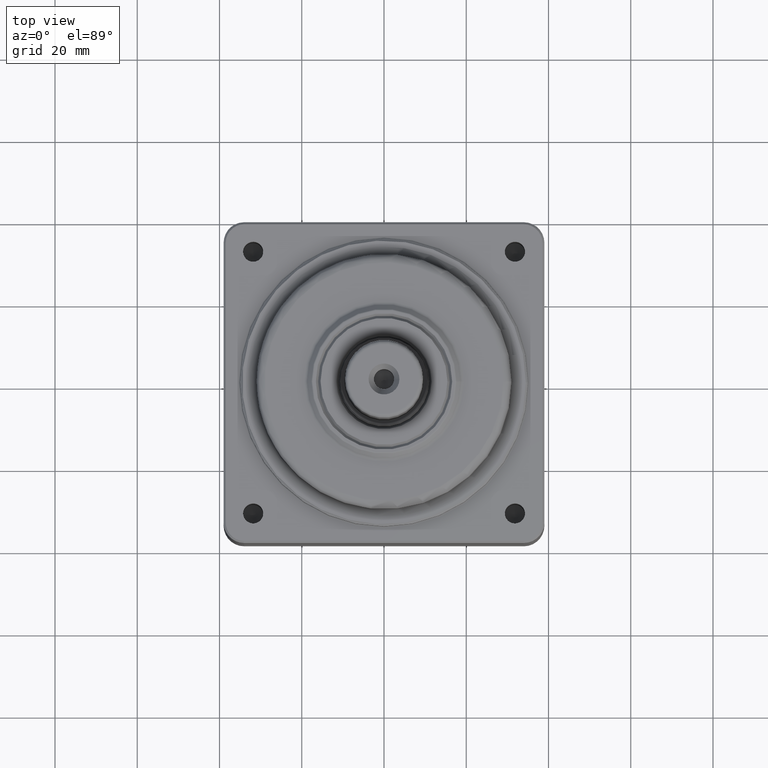
[diagram: clean part render]
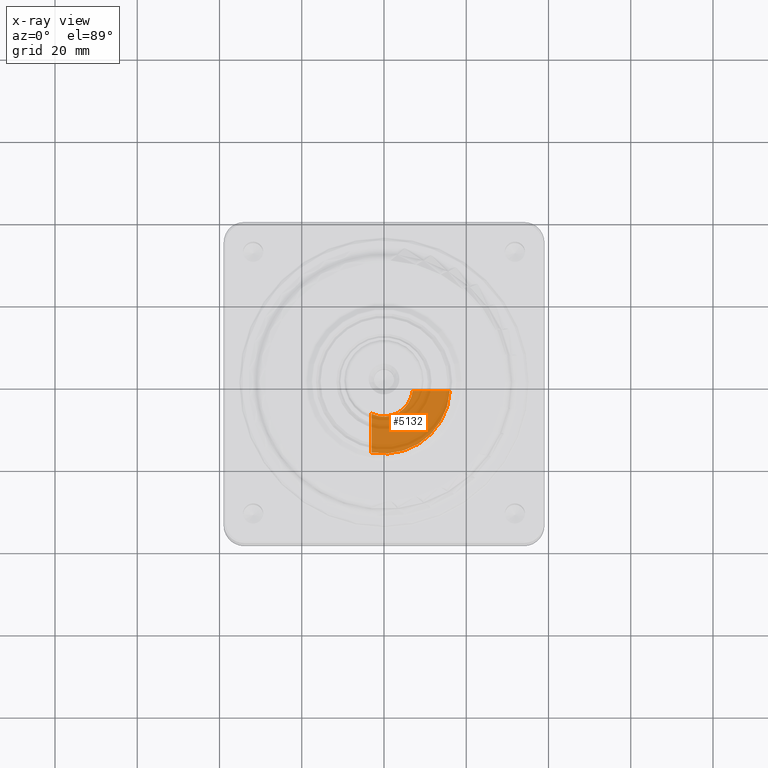
[diagram: x-ray — body ghosted, one internal face saturated and labeled with its STEP entity id]
A machine part, top view, then the same camera in x-ray: the body is ghosted and one INTERNAL B-rep face — a face not visible from any outside direction — is saturated and labeled: STEP entity #5132.
In plain terms, the highlighted planar face has unit normal (0, 0, -1).
Its self-contained STEP definition (entity closure, byte-faithful):
#73=CARTESIAN_POINT('',(-3.0,-6.324555320336759,-39.0));
#74=VERTEX_POINT('',#73);
#75=CARTESIAN_POINT('',(6.959705453537528,-0.75,-39.0));
#76=VERTEX_POINT('',#75);
#77=CARTESIAN_POINT('',(0.0,3.284779E-031,-39.0));
#78=DIRECTION('',(0.0,0.0,1.0));
#79=DIRECTION('',(1.0,0.0,0.0));
#80=AXIS2_PLACEMENT_3D('',#77,#78,#79);
#81=CIRCLE('',#80,7.000000000000001);
#82=EDGE_CURVE('',#74,#76,#81,.T.);
#4816=CARTESIAN_POINT('',(15.982412208424609,-0.75,-39.0));
#4817=VERTEX_POINT('',#4816);
#4824=CARTESIAN_POINT('',(-3.0,-15.716233645501713,-39.0));
#4825=VERTEX_POINT('',#4824);
#4826=CARTESIAN_POINT('',(0.0,3.284779E-031,-39.0));
#4827=DIRECTION('',(0.0,0.0,-1.0));
#4828=DIRECTION('',(-1.0,0.0,0.0));
#4829=AXIS2_PLACEMENT_3D('',#4826,#4827,#4828);
#4830=CIRCLE('',#4829,16.0);
#4831=EDGE_CURVE('',#4817,#4825,#4830,.T.);
#5041=CARTESIAN_POINT('',(-3.0,-15.716233645501713,-39.0));
#5042=DIRECTION('',(0.0,1.0,0.0));
#5043=VECTOR('',#5042,9.391678325164955);
#5044=LINE('',#5041,#5043);
#5045=EDGE_CURVE('',#4825,#74,#5044,.T.);
#5116=CARTESIAN_POINT('',(16.0,-16.0,-39.0));
#5117=DIRECTION('',(0.0,0.0,-1.0));
#5118=DIRECTION('',(-1.0,0.0,0.0));
#5119=AXIS2_PLACEMENT_3D('',#5116,#5117,#5118);
#5120=PLANE('',#5119);
#5121=ORIENTED_EDGE('',*,*,#4831,.F.);
#5122=CARTESIAN_POINT('',(15.982412208424609,-0.75,-39.0));
#5123=DIRECTION('',(-1.0,0.0,0.0));
#5124=VECTOR('',#5123,9.022706754887082);
#5125=LINE('',#5122,#5124);
#5126=EDGE_CURVE('',#4817,#76,#5125,.T.);
#5127=ORIENTED_EDGE('',*,*,#5126,.T.);
#5128=ORIENTED_EDGE('',*,*,#82,.F.);
#5129=ORIENTED_EDGE('',*,*,#5045,.F.);
#5130=EDGE_LOOP('',(#5121,#5127,#5128,#5129));
#5131=FACE_OUTER_BOUND('',#5130,.T.);
#5132=ADVANCED_FACE('',(#5131),#5120,.F.);